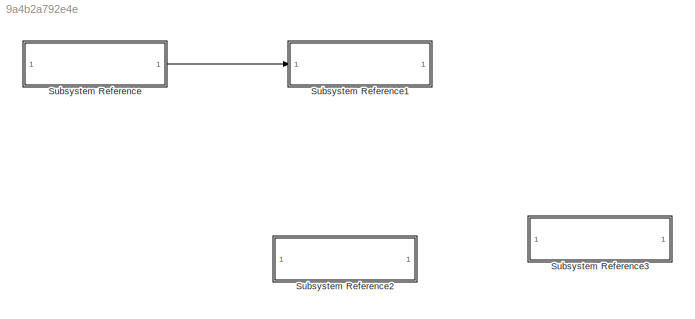
MODEL slx_9a4b2a792e4e
KIND model
CONFIG AbsTol = auto
CONFIG EnableMultiTasking = on
CONFIG FixedStep = auto
CONFIG MaxStep = auto
CONFIG MinStep = auto
CONFIG RelTol = 1e-3
CONFIG SampleTimeConstraint = Unconstrained
CONFIG SolverName = FixedStepAuto
CONFIG StartTime = 0.0
CONFIG StopTime = inf
BLOCK [SubSystem] Subsystem Reference
  ReferencedSubsystem = Sonars
BLOCK [SubSystem] Subsystem Reference1
  ReferencedSubsystem = Senalizacion
BLOCK [SubSystem] Subsystem Reference2
  Commented = on
  ReferencedSubsystem = <file name>
BLOCK [SubSystem] Subsystem Reference3
  Commented = on
  ReferencedSubsystem = <file name>
LINE Subsystem Reference:1 -> Subsystem Reference1:1
